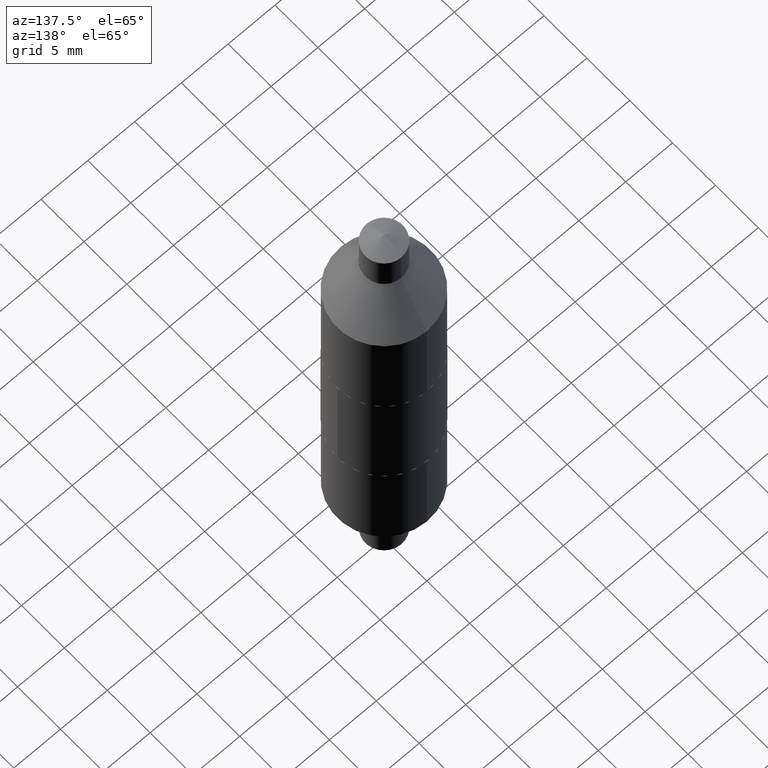
[diagram: clean part render]
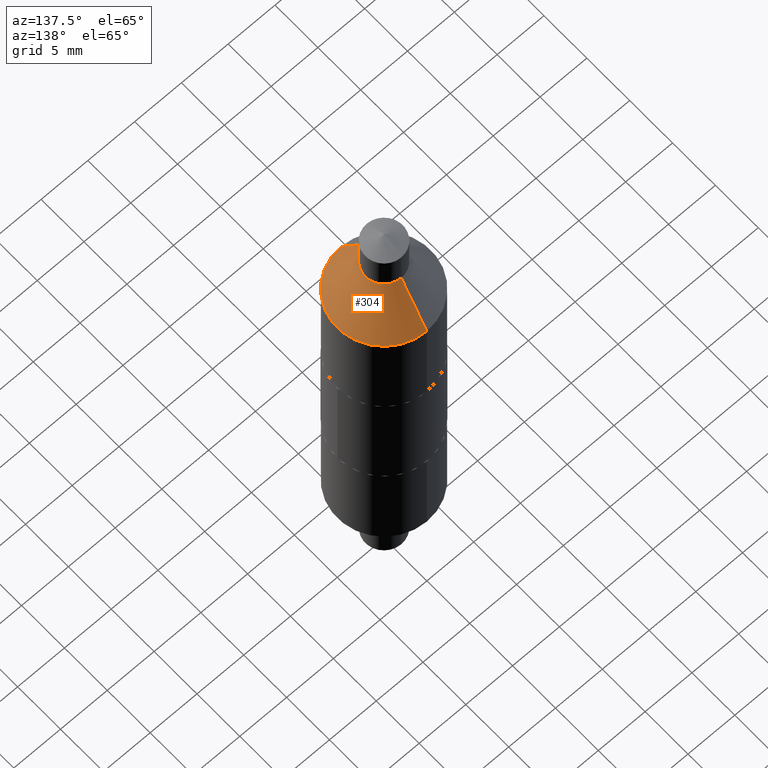
[diagram: same view with one face highlighted and labeled with its STEP entity id]
A machine part, auxiliary view. The second image highlights one B-rep face of the part: STEP entity #304.
In plain terms, the highlighted conical surface has half-angle 30 deg.
Its self-contained STEP definition (entity closure, byte-faithful):
#27 = CARTESIAN_POINT ( 'NONE',  ( -1.714547113792967986E-29, 2.429966256632936754E-15, 0.6985447996261126002 ) ) ;
#61 = CONICAL_SURFACE ( 'NONE', #113, 0.07875000000000000056, 0.5235987755982929315 ) ;
#62 = LINE ( 'NONE', #156, #432 ) ;
#96 = CARTESIAN_POINT ( 'NONE',  ( -2.217682136543749536E-29, 3.140011577663515512E-15, 0.9031000000000001249 ) ) ;
#104 = CARTESIAN_POINT ( 'NONE',  ( -1.374596203102559949E-15, -0.1968499999999977490, 0.6985447996261132664 ) ) ;
#110 = CARTESIAN_POINT ( 'NONE',  ( 1.350489030861320696E-15, 0.1968500000000026340, 0.6985447996261119341 ) ) ;
#113 = AXIS2_PLACEMENT_3D ( 'NONE', #126, #513, #454 ) ;
#126 = CARTESIAN_POINT ( 'NONE',  ( -2.217682136543749536E-29, 3.140011577663515512E-15, 0.9031000000000001249 ) ) ;
#130 = DIRECTION ( 'NONE',  ( -6.982962677686264344E-15, -1.000000000000000000, 3.469013325287953293E-15 ) ) ;
#136 = EDGE_CURVE ( 'NONE', #236, #593, #142, .T. ) ;
#142 = LINE ( 'NONE', #260, #551 ) ;
#156 = CARTESIAN_POINT ( 'NONE',  ( -5.499083108678155324E-16, -0.07874999999999685030, 0.9031000000000003469 ) ) ;
#224 = ORIENTED_EDGE ( 'NONE', *, *, #662, .T. ) ;
#236 = VERTEX_POINT ( 'NONE', #350 ) ;
#260 = CARTESIAN_POINT ( 'NONE',  ( 5.402642173244858016E-16, 0.07875000000000313694, 0.9030999999999999028 ) ) ;
#277 = DIRECTION ( 'NONE',  ( -3.491481338843076163E-15, -0.4999999999999978351, -0.8660254037844399289 ) ) ;
#302 = AXIS2_PLACEMENT_3D ( 'NONE', #96, #629, #130 ) ;
#304 = ADVANCED_FACE ( 'NONE', ( #306 ), #61, .T. ) ;
#306 = FACE_OUTER_BOUND ( 'NONE', #427, .T. ) ;
#319 = AXIS2_PLACEMENT_3D ( 'NONE', #27, #655, #453 ) ;
#321 = VERTEX_POINT ( 'NONE', #672 ) ;
#350 = CARTESIAN_POINT ( 'NONE',  ( 5.402642173244840266E-16, 0.07875000000000313694, 0.9030999999999999028 ) ) ;
#353 = EDGE_CURVE ( 'NONE', #321, #236, #656, .T. ) ;
#427 = EDGE_LOOP ( 'NONE', ( #603, #677, #605, #224 ) ) ;
#432 = VECTOR ( 'NONE', #277, 39.37007874015748854 ) ;
#453 = DIRECTION ( 'NONE',  ( -6.982962677686265133E-15, -1.000000000000000000, 3.469453890861392812E-15 ) ) ;
#454 = DIRECTION ( 'NONE',  ( -6.982962677686264344E-15, -1.000000000000000000, 3.469013325287953293E-15 ) ) ;
#469 = DIRECTION ( 'NONE',  ( 3.430248998885751187E-15, 0.4999999999999918954, -0.8660254037844432595 ) ) ;
#505 = CIRCLE ( 'NONE', #319, 0.1968500000000001915 ) ;
#513 = DIRECTION ( 'NONE',  ( 2.459654028991429845E-29, -3.471167292411791598E-15, -1.000000000000000000 ) ) ;
#551 = VECTOR ( 'NONE', #469, 39.37007874015748143 ) ;
#553 = EDGE_CURVE ( 'NONE', #321, #611, #62, .T. ) ;
#593 = VERTEX_POINT ( 'NONE', #110 ) ;
#603 = ORIENTED_EDGE ( 'NONE', *, *, #136, .F. ) ;
#605 = ORIENTED_EDGE ( 'NONE', *, *, #553, .T. ) ;
#611 = VERTEX_POINT ( 'NONE', #104 ) ;
#629 = DIRECTION ( 'NONE',  ( -2.459654028991429845E-29, 3.471167292411791598E-15, 1.000000000000000000 ) ) ;
#655 = DIRECTION ( 'NONE',  ( -2.459654028991429845E-29, 3.471167292411791598E-15, 1.000000000000000000 ) ) ;
#656 = CIRCLE ( 'NONE', #302, 0.07875000000000000056 ) ;
#662 = EDGE_CURVE ( 'NONE', #611, #593, #505, .T. ) ;
#672 = CARTESIAN_POINT ( 'NONE',  ( -5.499083108678155324E-16, -0.07874999999999685030, 0.9031000000000003469 ) ) ;
#677 = ORIENTED_EDGE ( 'NONE', *, *, #353, .F. ) ;